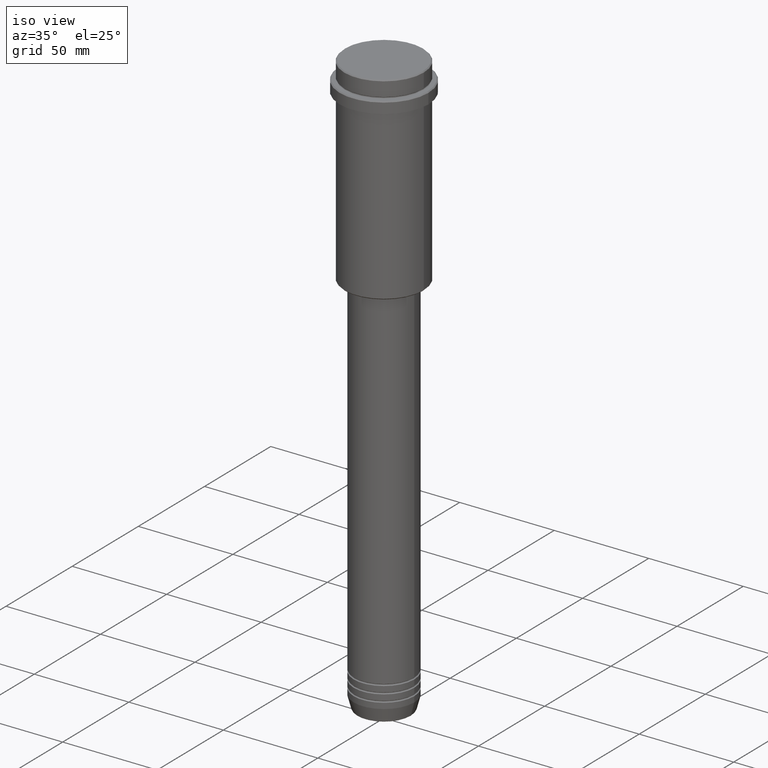
[diagram: clean part render]
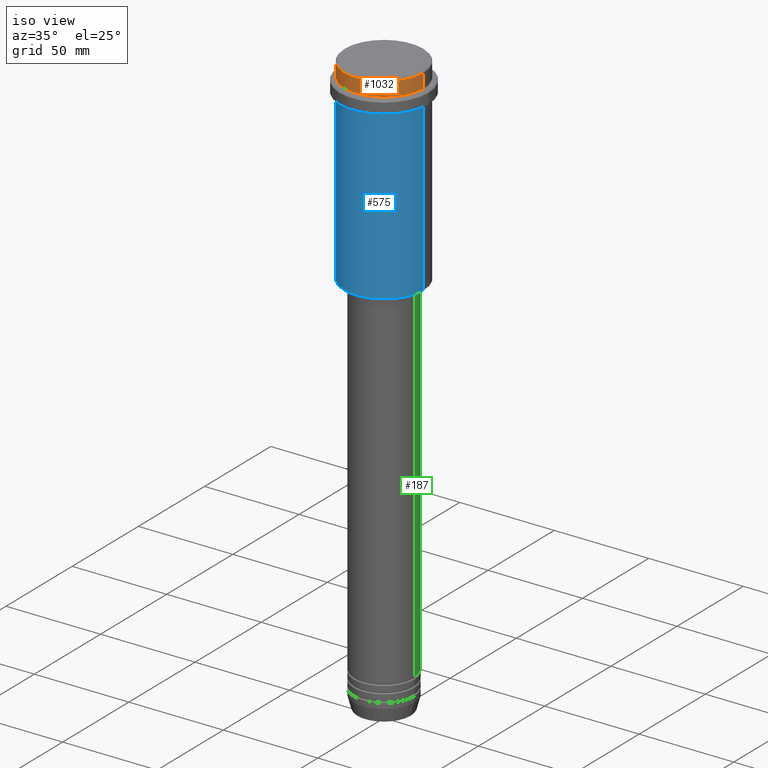
[diagram: same view with three faces highlighted in distinct colors, each labeled with its STEP entity id]
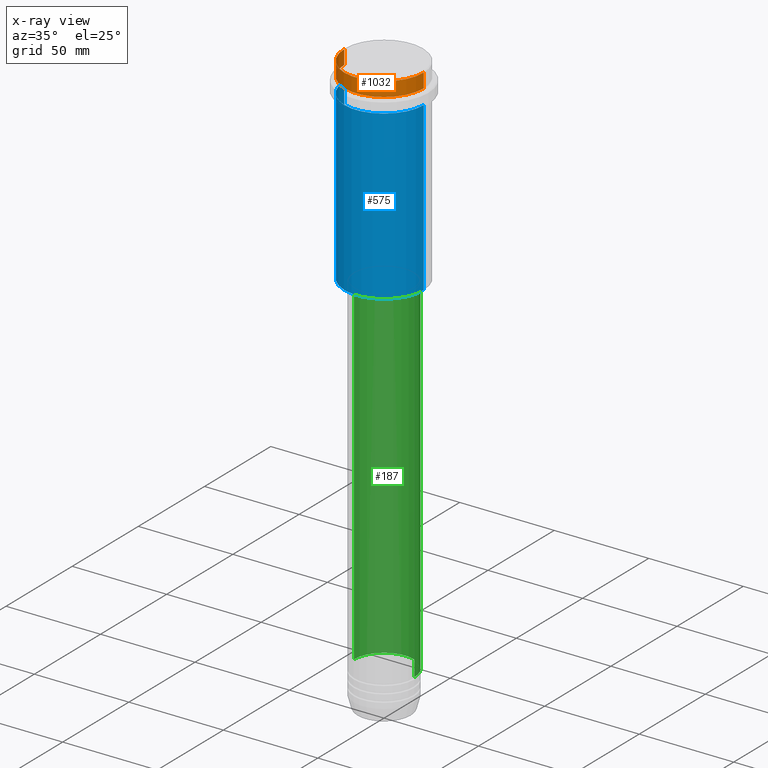
[diagram: x-ray of the same camera — body ghosted, the three highlighted faces saturated]
A machine part, iso view with three faces highlighted in distinct colors.
The next image is the same camera in x-ray (body ghosted, the three faces saturated) — at least one of them is partly hidden behind the body in this view.
Their STEP definitions:

[orange] entity #1032 — the highlighted cylindrical surface (partial cylindrical patch) has radius 21 mm, axis along (-0, -0, 1).
#81 = FACE_OUTER_BOUND ( 'NONE', #322, .T. ) ;
#180 = ORIENTED_EDGE ( 'NONE', *, *, #641, .T. ) ;
#230 = ORIENTED_EDGE ( 'NONE', *, *, #1335, .T. ) ;
#322 = EDGE_LOOP ( 'NONE', ( #688, #668, #230, #180 ) ) ;
#363 = DIRECTION ( 'NONE',  ( 1.000000000000000000, 0.000000000000000000, 0.000000000000000000 ) ) ;
#406 = CARTESIAN_POINT ( 'NONE',  ( -21.00000000000000000, 2.571758278209441661E-15, -0.4999999999999553690 ) ) ;
#427 = CARTESIAN_POINT ( 'NONE',  ( -21.00000000000000000, 2.571758278209441661E-15, 0.000000000000000000 ) ) ;
#440 = DIRECTION ( 'NONE',  ( 0.000000000000000000, 0.000000000000000000, -1.000000000000000000 ) ) ;
#590 = VERTEX_POINT ( 'NONE', #406 ) ;
#641 = EDGE_CURVE ( 'NONE', #751, #590, #1185, .T. ) ;
#648 = CIRCLE ( 'NONE', #841, 21.00000000000000000 ) ;
#668 = ORIENTED_EDGE ( 'NONE', *, *, #1380, .T. ) ;
#688 = ORIENTED_EDGE ( 'NONE', *, *, #940, .F. ) ;
#751 = VERTEX_POINT ( 'NONE', #1100 ) ;
#759 = CARTESIAN_POINT ( 'NONE',  ( 0.000000000000000000, 0.000000000000000000, -0.4999999999999553690 ) ) ;
#805 = CARTESIAN_POINT ( 'NONE',  ( 0.000000000000000000, 0.000000000000000000, -7.999999999999998224 ) ) ;
#819 = VECTOR ( 'NONE', #1257, 1000.000000000000000 ) ;
#841 = AXIS2_PLACEMENT_3D ( 'NONE', #805, #1345, #363 ) ;
#849 = VERTEX_POINT ( 'NONE', #1151 ) ;
#851 = VERTEX_POINT ( 'NONE', #1038 ) ;
#858 = DIRECTION ( 'NONE',  ( 1.000000000000000000, 0.000000000000000000, 0.000000000000000000 ) ) ;
#928 = AXIS2_PLACEMENT_3D ( 'NONE', #759, #440, #986 ) ;
#940 = EDGE_CURVE ( 'NONE', #849, #590, #1214, .T. ) ;
#949 = CARTESIAN_POINT ( 'NONE',  ( 0.000000000000000000, 0.000000000000000000, 0.000000000000000000 ) ) ;
#986 = DIRECTION ( 'NONE',  ( 1.000000000000000000, 0.000000000000000000, 0.000000000000000000 ) ) ;
#1032 = ADVANCED_FACE ( 'NONE', ( #81 ), #1184, .T. ) ;
#1038 = CARTESIAN_POINT ( 'NONE',  ( 21.00000000000000000, 0.000000000000000000, -7.999999999999998224 ) ) ;
#1078 = DIRECTION ( 'NONE',  ( -0.000000000000000000, -0.000000000000000000, 1.000000000000000000 ) ) ;
#1100 = CARTESIAN_POINT ( 'NONE',  ( 21.00000000000000000, 0.000000000000000000, -0.4999999999999553690 ) ) ;
#1135 = CARTESIAN_POINT ( 'NONE',  ( 21.00000000000000000, 0.000000000000000000, 0.000000000000000000 ) ) ;
#1151 = CARTESIAN_POINT ( 'NONE',  ( -21.00000000000000000, 2.571758278209441661E-15, -7.999999999999998224 ) ) ;
#1184 = CYLINDRICAL_SURFACE ( 'NONE', #1188, 21.00000000000000000 ) ;
#1185 = CIRCLE ( 'NONE', #928, 21.00000000000000000 ) ;
#1188 = AXIS2_PLACEMENT_3D ( 'NONE', #949, #1078, #858 ) ;
#1207 = DIRECTION ( 'NONE',  ( -0.000000000000000000, -0.000000000000000000, 1.000000000000000000 ) ) ;
#1214 = LINE ( 'NONE', #427, #1388 ) ;
#1257 = DIRECTION ( 'NONE',  ( -0.000000000000000000, -0.000000000000000000, 1.000000000000000000 ) ) ;
#1335 = EDGE_CURVE ( 'NONE', #851, #751, #1341, .T. ) ;
#1341 = LINE ( 'NONE', #1135, #819 ) ;
#1345 = DIRECTION ( 'NONE',  ( -0.000000000000000000, -0.000000000000000000, 1.000000000000000000 ) ) ;
#1380 = EDGE_CURVE ( 'NONE', #849, #851, #648, .T. ) ;
#1388 = VECTOR ( 'NONE', #1207, 1000.000000000000000 ) ;

[blue] entity #575 — the highlighted cylindrical surface (partial cylindrical patch) has radius 21 mm, axis along (-0, -0, 1).
#20 = ORIENTED_EDGE ( 'NONE', *, *, #911, .T. ) ;
#46 = CARTESIAN_POINT ( 'NONE',  ( -21.00000000000000000, 2.571758278209441661E-15, 0.000000000000000000 ) ) ;
#49 = EDGE_LOOP ( 'NONE', ( #379, #20, #301, #232 ) ) ;
#62 = CIRCLE ( 'NONE', #557, 21.00000000000000000 ) ;
#65 = LINE ( 'NONE', #1369, #1015 ) ;
#148 = AXIS2_PLACEMENT_3D ( 'NONE', #1157, #1365, #167 ) ;
#162 = LINE ( 'NONE', #46, #997 ) ;
#167 = DIRECTION ( 'NONE',  ( 1.000000000000000000, 0.000000000000000000, 0.000000000000000000 ) ) ;
#168 = CARTESIAN_POINT ( 'NONE',  ( 0.000000000000000000, 0.000000000000000000, 0.000000000000000000 ) ) ;
#232 = ORIENTED_EDGE ( 'NONE', *, *, #1089, .F. ) ;
#301 = ORIENTED_EDGE ( 'NONE', *, *, #568, .T. ) ;
#348 = CARTESIAN_POINT ( 'NONE',  ( 21.00000000000000000, 0.000000000000000000, -16.00000000000000355 ) ) ;
#379 = ORIENTED_EDGE ( 'NONE', *, *, #1373, .F. ) ;
#422 = DIRECTION ( 'NONE',  ( -1.000000000000000000, 0.000000000000000000, 0.000000000000000000 ) ) ;
#481 = DIRECTION ( 'NONE',  ( -0.000000000000000000, -0.000000000000000000, 1.000000000000000000 ) ) ;
#499 = DIRECTION ( 'NONE',  ( -0.000000000000000000, -0.000000000000000000, 1.000000000000000000 ) ) ;
#528 = DIRECTION ( 'NONE',  ( -0.000000000000000000, -0.000000000000000000, 1.000000000000000000 ) ) ;
#553 = VERTEX_POINT ( 'NONE', #1253 ) ;
#557 = AXIS2_PLACEMENT_3D ( 'NONE', #757, #528, #422 ) ;
#568 = EDGE_CURVE ( 'NONE', #586, #1070, #65, .T. ) ;
#575 = ADVANCED_FACE ( 'NONE', ( #1351 ), #1285, .T. ) ;
#586 = VERTEX_POINT ( 'NONE', #1404 ) ;
#757 = CARTESIAN_POINT ( 'NONE',  ( 0.000000000000000000, 0.000000000000000000, -104.5000000000000853 ) ) ;
#775 = CIRCLE ( 'NONE', #148, 21.00000000000000000 ) ;
#869 = VERTEX_POINT ( 'NONE', #1265 ) ;
#911 = EDGE_CURVE ( 'NONE', #869, #586, #62, .T. ) ;
#997 = VECTOR ( 'NONE', #499, 1000.000000000000000 ) ;
#1015 = VECTOR ( 'NONE', #481, 1000.000000000000000 ) ;
#1048 = DIRECTION ( 'NONE',  ( -0.000000000000000000, -0.000000000000000000, 1.000000000000000000 ) ) ;
#1070 = VERTEX_POINT ( 'NONE', #348 ) ;
#1089 = EDGE_CURVE ( 'NONE', #553, #1070, #775, .T. ) ;
#1157 = CARTESIAN_POINT ( 'NONE',  ( 0.000000000000000000, 0.000000000000000000, -16.00000000000000355 ) ) ;
#1253 = CARTESIAN_POINT ( 'NONE',  ( -21.00000000000000000, 2.571758278209441661E-15, -16.00000000000000355 ) ) ;
#1265 = CARTESIAN_POINT ( 'NONE',  ( -21.00000000000000000, 2.571758278209441661E-15, -104.5000000000000853 ) ) ;
#1285 = CYLINDRICAL_SURFACE ( 'NONE', #1334, 21.00000000000000000 ) ;
#1290 = DIRECTION ( 'NONE',  ( 1.000000000000000000, 0.000000000000000000, 0.000000000000000000 ) ) ;
#1334 = AXIS2_PLACEMENT_3D ( 'NONE', #168, #1048, #1290 ) ;
#1351 = FACE_OUTER_BOUND ( 'NONE', #49, .T. ) ;
#1365 = DIRECTION ( 'NONE',  ( -0.000000000000000000, -0.000000000000000000, 1.000000000000000000 ) ) ;
#1369 = CARTESIAN_POINT ( 'NONE',  ( 21.00000000000000000, 0.000000000000000000, 0.000000000000000000 ) ) ;
#1373 = EDGE_CURVE ( 'NONE', #869, #553, #162, .T. ) ;
#1404 = CARTESIAN_POINT ( 'NONE',  ( 21.00000000000000000, 0.000000000000000000, -104.5000000000000853 ) ) ;

[green] entity #187 — the highlighted cylindrical surface (partial cylindrical patch) has radius 16 mm, axis along (-0, -0, 1).
#29 = ORIENTED_EDGE ( 'NONE', *, *, #448, .T. ) ;
#36 = VERTEX_POINT ( 'NONE', #211 ) ;
#120 = EDGE_CURVE ( 'NONE', #1275, #36, #1066, .T. ) ;
#159 = CARTESIAN_POINT ( 'NONE',  ( 0.000000000000000000, 0.000000000000000000, -105.9999999999999289 ) ) ;
#187 = ADVANCED_FACE ( 'NONE', ( #953 ), #1187, .T. ) ;
#195 = AXIS2_PLACEMENT_3D ( 'NONE', #1393, #758, #732 ) ;
#211 = CARTESIAN_POINT ( 'NONE',  ( -16.00000000000000000, 1.959434878635765131E-15, -290.9999999999998863 ) ) ;
#268 = CARTESIAN_POINT ( 'NONE',  ( 16.00000000000000000, 0.000000000000000000, 0.000000000000000000 ) ) ;
#285 = VECTOR ( 'NONE', #1174, 1000.000000000000000 ) ;
#370 = VERTEX_POINT ( 'NONE', #1224 ) ;
#378 = DIRECTION ( 'NONE',  ( -0.000000000000000000, -0.000000000000000000, 1.000000000000000000 ) ) ;
#383 = LINE ( 'NONE', #268, #285 ) ;
#431 = CARTESIAN_POINT ( 'NONE',  ( 0.000000000000000000, 0.000000000000000000, -290.9999999999998863 ) ) ;
#448 = EDGE_CURVE ( 'NONE', #36, #370, #1018, .T. ) ;
#473 = CARTESIAN_POINT ( 'NONE',  ( -16.00000000000000000, 1.959434878635765131E-15, 0.000000000000000000 ) ) ;
#486 = EDGE_CURVE ( 'NONE', #1275, #1263, #383, .T. ) ;
#495 = ORIENTED_EDGE ( 'NONE', *, *, #503, .F. ) ;
#501 = CARTESIAN_POINT ( 'NONE',  ( 16.00000000000000355, 0.000000000000000000, -105.9999999999999289 ) ) ;
#503 = EDGE_CURVE ( 'NONE', #1263, #370, #1069, .T. ) ;
#628 = EDGE_LOOP ( 'NONE', ( #773, #29, #495, #734 ) ) ;
#732 = DIRECTION ( 'NONE',  ( 1.000000000000000000, 0.000000000000000000, 0.000000000000000000 ) ) ;
#734 = ORIENTED_EDGE ( 'NONE', *, *, #486, .F. ) ;
#758 = DIRECTION ( 'NONE',  ( -0.000000000000000000, -0.000000000000000000, 1.000000000000000000 ) ) ;
#773 = ORIENTED_EDGE ( 'NONE', *, *, #120, .T. ) ;
#884 = DIRECTION ( 'NONE',  ( 1.000000000000000000, 0.000000000000000000, 0.000000000000000000 ) ) ;
#914 = DIRECTION ( 'NONE',  ( -0.000000000000000000, -0.000000000000000000, 1.000000000000000000 ) ) ;
#953 = FACE_OUTER_BOUND ( 'NONE', #628, .T. ) ;
#1018 = LINE ( 'NONE', #473, #1333 ) ;
#1040 = AXIS2_PLACEMENT_3D ( 'NONE', #431, #1112, #884 ) ;
#1066 = CIRCLE ( 'NONE', #1040, 16.00000000000000000 ) ;
#1069 = CIRCLE ( 'NONE', #1116, 16.00000000000000355 ) ;
#1112 = DIRECTION ( 'NONE',  ( -0.000000000000000000, -0.000000000000000000, 1.000000000000000000 ) ) ;
#1116 = AXIS2_PLACEMENT_3D ( 'NONE', #159, #378, #1166 ) ;
#1166 = DIRECTION ( 'NONE',  ( 1.000000000000000000, 0.000000000000000000, 0.000000000000000000 ) ) ;
#1174 = DIRECTION ( 'NONE',  ( -0.000000000000000000, -0.000000000000000000, 1.000000000000000000 ) ) ;
#1187 = CYLINDRICAL_SURFACE ( 'NONE', #195, 16.00000000000000000 ) ;
#1224 = CARTESIAN_POINT ( 'NONE',  ( -16.00000000000000355, 1.959434878635765526E-15, -105.9999999999999289 ) ) ;
#1263 = VERTEX_POINT ( 'NONE', #501 ) ;
#1275 = VERTEX_POINT ( 'NONE', #1389 ) ;
#1333 = VECTOR ( 'NONE', #914, 1000.000000000000000 ) ;
#1389 = CARTESIAN_POINT ( 'NONE',  ( 16.00000000000000000, 0.000000000000000000, -290.9999999999998863 ) ) ;
#1393 = CARTESIAN_POINT ( 'NONE',  ( 0.000000000000000000, 0.000000000000000000, 0.000000000000000000 ) ) ;